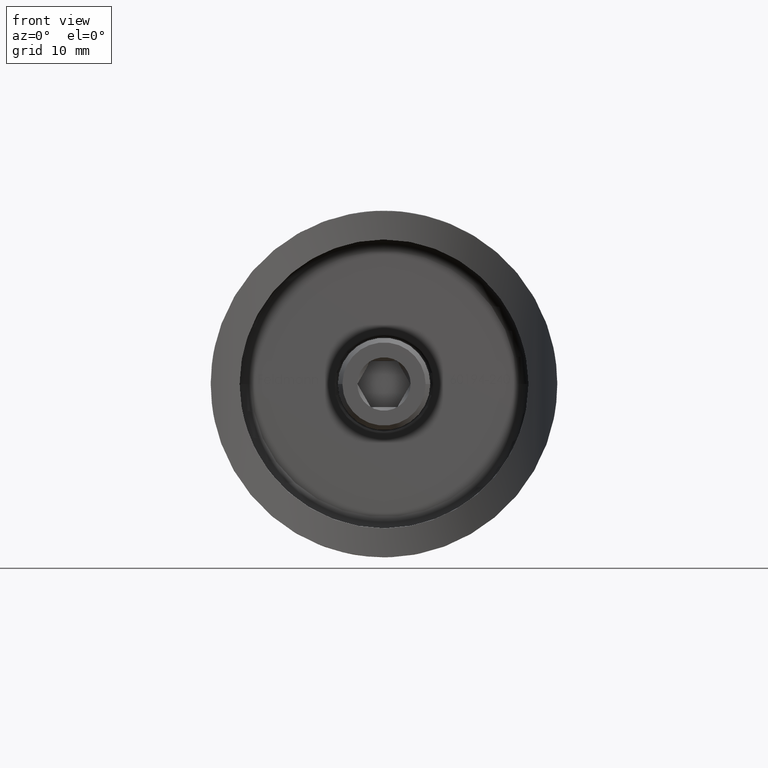
[diagram: clean part render]
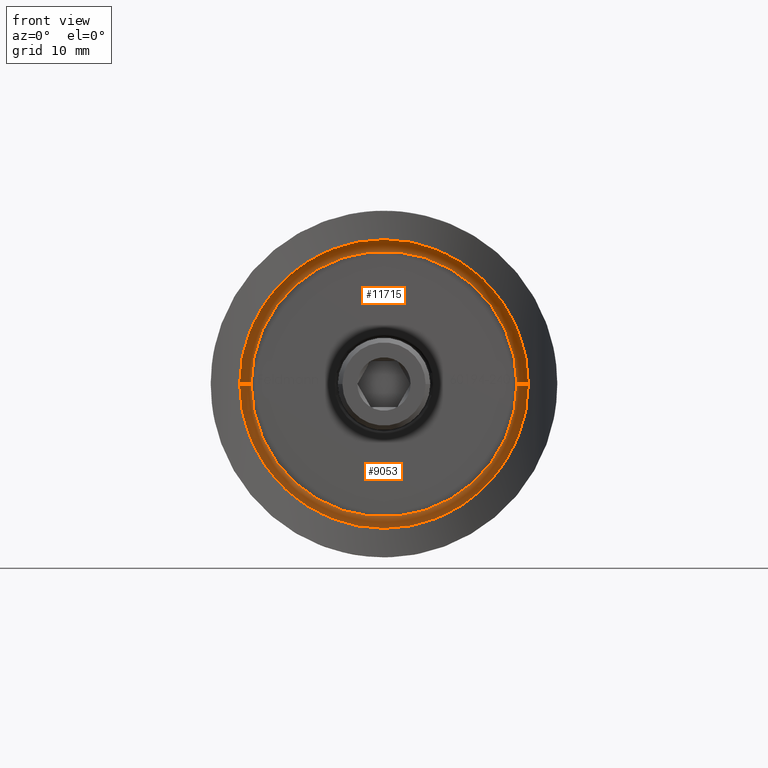
[diagram: same view with one multi-face feature highlighted, each face labeled with its STEP entity id]
A machine part, front view. The highlighted faces form ONE feature: a constant-radius fillet chain: 2 tangent blend faces with common blend radius 1 mm. The faces share edges in the B-rep.
Their STEP definitions:
[1] entity #11715 (Torus):
#43 = FACE_OUTER_BOUND ( 'NONE', #8201, .T. ) ;
#68 = EDGE_CURVE ( 'NONE', #8325, #12669, #13176, .T. ) ;
#152 = DIRECTION ( 'NONE',  ( 1.224646799147353207E-16, -2.021643378665029326E-47, 1.000000000000000000 ) ) ;
#303 = CIRCLE ( 'NONE', #7526, 11.50000000000000000 ) ;
#474 = CARTESIAN_POINT ( 'NONE',  ( -11.50000000000000178, 10.49999999999999822, 1.469576158976823947E-15 ) ) ;
#1213 = AXIS2_PLACEMENT_3D ( 'NONE', #7365, #3826, #9866 ) ;
#1224 = DIRECTION ( 'NONE',  ( -1.650797095189058802E-31, -1.000000000000000000, -0.000000000000000000 ) ) ;
#1563 = AXIS2_PLACEMENT_3D ( 'NONE', #5372, #3097, #7919 ) ;
#2092 = VERTEX_POINT ( 'NONE', #13510 ) ;
#2573 = ORIENTED_EDGE ( 'NONE', *, *, #68, .T. ) ;
#2763 = CIRCLE ( 'NONE', #10824, 0.9999999999999991118 ) ;
#3097 = DIRECTION ( 'NONE',  ( -1.650797095189058802E-31, -1.000000000000000000, -0.000000000000000000 ) ) ;
#3254 = CARTESIAN_POINT ( 'NONE',  ( 11.49999999999999822, 9.499999999999998224, 0.000000000000000000 ) ) ;
#3713 = DIRECTION ( 'NONE',  ( 1.000000000000000000, 0.000000000000000000, -1.224646799147353454E-16 ) ) ;
#3826 = DIRECTION ( 'NONE',  ( 1.650797095189058802E-31, 1.000000000000000000, 0.000000000000000000 ) ) ;
#4142 = EDGE_CURVE ( 'NONE', #2092, #12669, #7231, .T. ) ;
#4432 = EDGE_CURVE ( 'NONE', #8325, #4561, #303, .T. ) ;
#4561 = VERTEX_POINT ( 'NONE', #474 ) ;
#5372 = CARTESIAN_POINT ( 'NONE',  ( -2.571758278209441661E-15, 9.499999999999998224, 0.000000000000000000 ) ) ;
#7231 = CIRCLE ( 'NONE', #1213, 12.50000000000000000 ) ;
#7326 = ORIENTED_EDGE ( 'NONE', *, *, #4142, .F. ) ;
#7365 = CARTESIAN_POINT ( 'NONE',  ( -2.571758278209441661E-15, 9.499999999999998224, 0.000000000000000000 ) ) ;
#7526 = AXIS2_PLACEMENT_3D ( 'NONE', #14154, #1224, #15101 ) ;
#7919 = DIRECTION ( 'NONE',  ( 1.000000000000000000, -1.650797095189058802E-31, 0.000000000000000000 ) ) ;
#8201 = EDGE_LOOP ( 'NONE', ( #13802, #9859, #2573, #7326 ) ) ;
#8325 = VERTEX_POINT ( 'NONE', #13936 ) ;
#9191 = DIRECTION ( 'NONE',  ( 0.000000000000000000, 0.000000000000000000, -1.000000000000000000 ) ) ;
#9450 = EDGE_CURVE ( 'NONE', #4561, #2092, #2763, .T. ) ;
#9603 = CARTESIAN_POINT ( 'NONE',  ( 12.49999999999999822, 9.499999999999998224, 0.000000000000000000 ) ) ;
#9859 = ORIENTED_EDGE ( 'NONE', *, *, #4432, .F. ) ;
#9866 = DIRECTION ( 'NONE',  ( 1.000000000000000000, 0.000000000000000000, 0.000000000000000000 ) ) ;
#10824 = AXIS2_PLACEMENT_3D ( 'NONE', #14275, #152, #3713 ) ;
#11098 = TOROIDAL_SURFACE ( 'NONE', #1563, 11.50000000000000000, 1.000000000000000000 ) ;
#11651 = DIRECTION ( 'NONE',  ( -1.000000000000000000, 0.000000000000000000, 0.000000000000000000 ) ) ;
#11715 = ADVANCED_FACE ( 'NONE', ( #43 ), #11098, .F. ) ;
#12669 = VERTEX_POINT ( 'NONE', #9603 ) ;
#13176 = CIRCLE ( 'NONE', #14721, 0.9999999999999991118 ) ;
#13510 = CARTESIAN_POINT ( 'NONE',  ( -12.50000000000000178, 9.499999999999998224, 1.530808498934191521E-15 ) ) ;
#13802 = ORIENTED_EDGE ( 'NONE', *, *, #9450, .F. ) ;
#13936 = CARTESIAN_POINT ( 'NONE',  ( 11.49999999999999822, 10.49999999999999822, 0.000000000000000000 ) ) ;
#14154 = CARTESIAN_POINT ( 'NONE',  ( -2.571758278209441661E-15, 10.49999999999999822, 0.000000000000000000 ) ) ;
#14275 = CARTESIAN_POINT ( 'NONE',  ( -11.50000000000000178, 9.499999999999998224, 1.408343819019456176E-15 ) ) ;
#14721 = AXIS2_PLACEMENT_3D ( 'NONE', #3254, #9191, #11651 ) ;
#15101 = DIRECTION ( 'NONE',  ( 1.000000000000000000, 0.000000000000000000, 0.000000000000000000 ) ) ;
[2] entity #9053 (Torus):
#68 = EDGE_CURVE ( 'NONE', #8325, #12669, #13176, .T. ) ;
#152 = DIRECTION ( 'NONE',  ( 1.224646799147353207E-16, -2.021643378665029326E-47, 1.000000000000000000 ) ) ;
#221 = CIRCLE ( 'NONE', #13248, 11.50000000000000000 ) ;
#344 = FACE_OUTER_BOUND ( 'NONE', #8765, .T. ) ;
#474 = CARTESIAN_POINT ( 'NONE',  ( -11.50000000000000178, 10.49999999999999822, 1.469576158976823947E-15 ) ) ;
#1117 = CIRCLE ( 'NONE', #12051, 12.50000000000000000 ) ;
#1462 = EDGE_CURVE ( 'NONE', #4561, #8325, #221, .T. ) ;
#2092 = VERTEX_POINT ( 'NONE', #13510 ) ;
#2753 = ORIENTED_EDGE ( 'NONE', *, *, #1462, .F. ) ;
#2763 = CIRCLE ( 'NONE', #10824, 0.9999999999999991118 ) ;
#3254 = CARTESIAN_POINT ( 'NONE',  ( 11.49999999999999822, 9.499999999999998224, 0.000000000000000000 ) ) ;
#3445 = CARTESIAN_POINT ( 'NONE',  ( -2.571758278209441661E-15, 9.499999999999998224, 0.000000000000000000 ) ) ;
#3713 = DIRECTION ( 'NONE',  ( 1.000000000000000000, 0.000000000000000000, -1.224646799147353454E-16 ) ) ;
#4561 = VERTEX_POINT ( 'NONE', #474 ) ;
#5050 = DIRECTION ( 'NONE',  ( -1.650797095189058802E-31, -1.000000000000000000, -0.000000000000000000 ) ) ;
#5883 = DIRECTION ( 'NONE',  ( 1.000000000000000000, 0.000000000000000000, 0.000000000000000000 ) ) ;
#6957 = DIRECTION ( 'NONE',  ( 1.650797095189058802E-31, 1.000000000000000000, 0.000000000000000000 ) ) ;
#8325 = VERTEX_POINT ( 'NONE', #13936 ) ;
#8765 = EDGE_LOOP ( 'NONE', ( #2753, #11293, #9780, #10810 ) ) ;
#9053 = ADVANCED_FACE ( 'NONE', ( #344 ), #12552, .F. ) ;
#9191 = DIRECTION ( 'NONE',  ( 0.000000000000000000, 0.000000000000000000, -1.000000000000000000 ) ) ;
#9450 = EDGE_CURVE ( 'NONE', #4561, #2092, #2763, .T. ) ;
#9603 = CARTESIAN_POINT ( 'NONE',  ( 12.49999999999999822, 9.499999999999998224, 0.000000000000000000 ) ) ;
#9780 = ORIENTED_EDGE ( 'NONE', *, *, #13105, .F. ) ;
#10810 = ORIENTED_EDGE ( 'NONE', *, *, #68, .F. ) ;
#10824 = AXIS2_PLACEMENT_3D ( 'NONE', #14275, #152, #3713 ) ;
#11293 = ORIENTED_EDGE ( 'NONE', *, *, #9450, .T. ) ;
#11651 = DIRECTION ( 'NONE',  ( -1.000000000000000000, 0.000000000000000000, 0.000000000000000000 ) ) ;
#12051 = AXIS2_PLACEMENT_3D ( 'NONE', #12846, #6957, #5883 ) ;
#12552 = TOROIDAL_SURFACE ( 'NONE', #14457, 11.50000000000000000, 1.000000000000000000 ) ;
#12669 = VERTEX_POINT ( 'NONE', #9603 ) ;
#12846 = CARTESIAN_POINT ( 'NONE',  ( -2.571758278209441661E-15, 9.499999999999998224, 0.000000000000000000 ) ) ;
#13080 = CARTESIAN_POINT ( 'NONE',  ( -2.571758278209441661E-15, 10.49999999999999822, 0.000000000000000000 ) ) ;
#13105 = EDGE_CURVE ( 'NONE', #12669, #2092, #1117, .T. ) ;
#13176 = CIRCLE ( 'NONE', #14721, 0.9999999999999991118 ) ;
#13181 = DIRECTION ( 'NONE',  ( 1.000000000000000000, 0.000000000000000000, 0.000000000000000000 ) ) ;
#13248 = AXIS2_PLACEMENT_3D ( 'NONE', #13080, #5050, #13181 ) ;
#13510 = CARTESIAN_POINT ( 'NONE',  ( -12.50000000000000178, 9.499999999999998224, 1.530808498934191521E-15 ) ) ;
#13936 = CARTESIAN_POINT ( 'NONE',  ( 11.49999999999999822, 10.49999999999999822, 0.000000000000000000 ) ) ;
#14275 = CARTESIAN_POINT ( 'NONE',  ( -11.50000000000000178, 9.499999999999998224, 1.408343819019456176E-15 ) ) ;
#14457 = AXIS2_PLACEMENT_3D ( 'NONE', #3445, #15201, #15296 ) ;
#14721 = AXIS2_PLACEMENT_3D ( 'NONE', #3254, #9191, #11651 ) ;
#15201 = DIRECTION ( 'NONE',  ( -1.650797095189058802E-31, -1.000000000000000000, -0.000000000000000000 ) ) ;
#15296 = DIRECTION ( 'NONE',  ( 1.000000000000000000, -1.650797095189058802E-31, 0.000000000000000000 ) ) ;